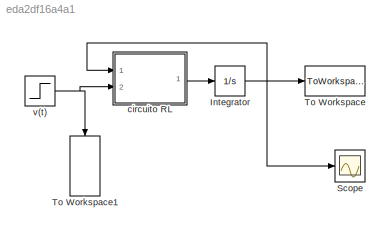
MODEL slx_eda2df16a4a1
KIND model
CONFIG AbsTol = auto
CONFIG EnableMultiTasking = off
CONFIG FixedStep = auto
CONFIG MaxStep = auto
CONFIG MinStep = auto
CONFIG RelTol = 1e-3
CONFIG SampleTimeConstraint = Unconstrained
CONFIG Solver = VariableStepAuto
CONFIG SolverName = VariableStepAuto
CONFIG StartTime = 0.0
CONFIG StopTime = simTime
BLOCK [Integrator] Integrator
  Ports = [1, 1]
BLOCK [Scope] Scope
  NumInputPorts = 1
  Ports = [1]
  ScopeSpecificationString = Simulink.scopes.TimeScopeBlockCfg('CurrentConfiguration', extmgr.ConfigurationSet(extmgr.Configuration('Core','General UI',true),extmgr.Configuration('Core','Source UI',true),extmgr.Configuration('Sources','WiredSimulink',true),extmgr.Configuration('Visuals','Time Domain',true,'SerializedDisplays',{struct('MinYLimReal','0.00945','MaxYLimReal','0.01035','YLabelReal','','MinYLimMag','0.00945','MaxYL...<+1347ch>
BLOCK [ToWorkspace] To Workspace
  FixptAsFi = on
  MaxDataPoints = inf
  Ports = [1]
  SampleTime = -1
  Save2DSignal = 3-D array (concatenate along third dimension)
  SaveFormat = Timeseries
  VariableName = i
BLOCK [ToWorkspace] To Workspace1
  FixptAsFi = on
  MaxDataPoints = inf
  Ports = [1]
  SampleTime = -1
  Save2DSignal = 3-D array (concatenate along third dimension)
  SaveFormat = Timeseries
  VariableName = v
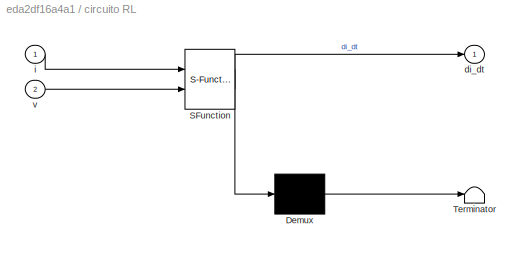
BLOCK [SubSystem] circuito RL
  ErrorFcn = Stateflow.Translate.translate
  PermitHierarchicalResolution = ExplicitOnly
  Ports = [2, 1]
  RequestExecContextInheritance = off
  SFBlockType = MATLAB Function
  TreatAsAtomicUnit = on
  Variant = off
BLOCK [Demux] circuito RL/ Demux 
  Outputs = 1
  Ports = [1, 1]
BLOCK [S-Function] circuito RL/ SFunction 
  EnableBusSupport = on
  FunctionName = sf_sfun
  Parameters = L,R
  PortCounts = [2 2]
  Ports = [2, 2]
  SFcnIsStateOwnerBlock = off
  SFunctionDeploymentMode = off
  Tag = Stateflow S-Function circuito_RL 2
BLOCK [Terminator] circuito RL/ Terminator 
BLOCK [Outport] circuito RL/di_dt
  IconDisplay = Port number
BLOCK [Inport] circuito RL/i
  IconDisplay = Port number
BLOCK [Inport] circuito RL/v
  IconDisplay = Port number
  Port = 2
BLOCK [Step] v(t)
  After = vf
  Before = v0
  SampleTime = 0
  Time = stepTime
NET Integrator:1 -> Scope:1, To Workspace:1, circuito RL:1
LINE circuito RL:1 -> Integrator:1
NET v(t):1 -> To Workspace1:1, circuito RL:2
note: NET lines group one-source signal fan-out (src -> all destinations, sorted); 1:1 wires keep LINE
CHART circuito RL states=1 transitions=1
  STATE_LABEL 'eML_blk_kernel()'
  STATE_LABEL 'SCRIPT:\nfunction di_dt = fcn(i, v, R, L)\n\ndi_dt = (1/L)*(v - R*i);\n'
